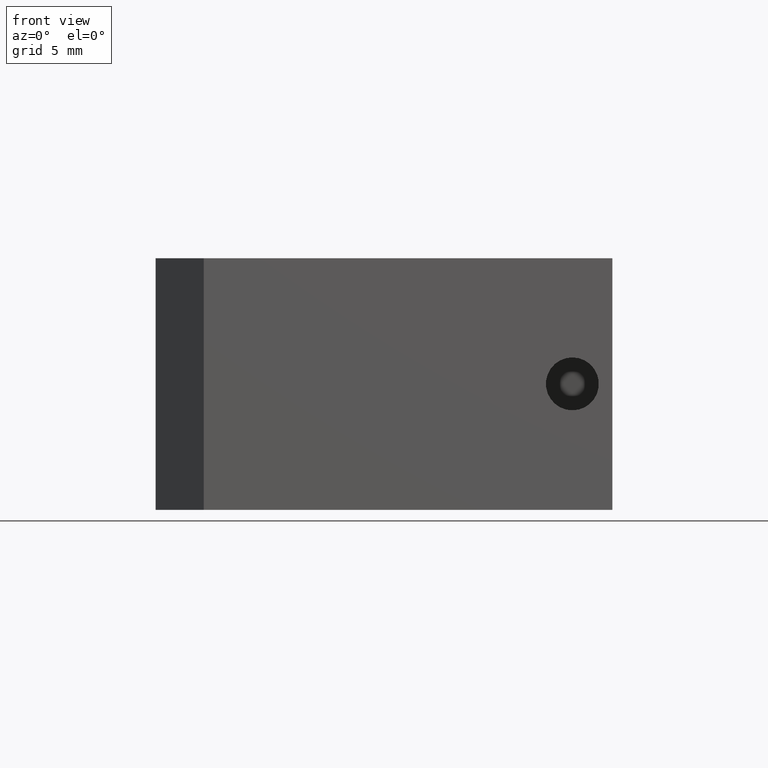
[diagram: clean part render]
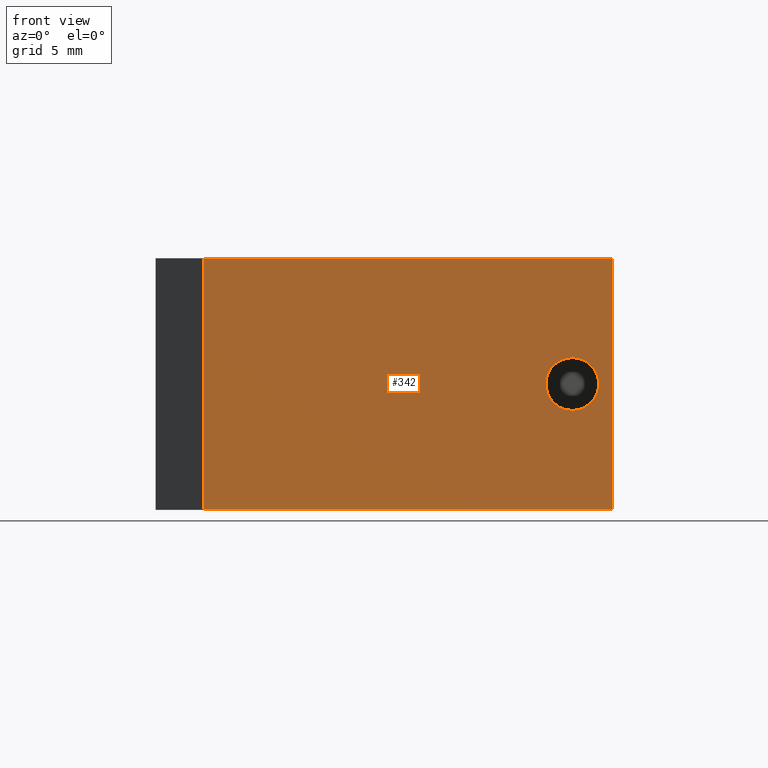
[diagram: same view with one face highlighted and labeled with its STEP entity id]
A machine part, front view. The second image highlights one B-rep face of the part: STEP entity #342.
In plain terms, the highlighted planar face has unit normal (0, 1, 0).
Its self-contained STEP definition (entity closure, byte-faithful):
#17 = DIRECTION ( 'NONE',  ( 1.000000000000000000, 0.0000000000000000000, 0.0000000000000000000 ) ) ;
#18 = CARTESIAN_POINT ( 'NONE',  ( 14.25000000000000000, -16.00000000000000000, 0.0000000000000000000 ) ) ;
#30 = VECTOR ( 'NONE', #17, 1000.000000000000000 ) ;
#39 = VECTOR ( 'NONE', #98, 1000.000000000000000 ) ;
#45 = CARTESIAN_POINT ( 'NONE',  ( 11.75000000000000000, -16.00000000000000000, 7.849999999999999600 ) ) ;
#50 = CIRCLE ( 'NONE', #175, 1.649999999999995200 ) ;
#52 = CARTESIAN_POINT ( 'NONE',  ( -14.25000000000000000, -16.00000000000000000, 15.69999999999999900 ) ) ;
#72 = ORIENTED_EDGE ( 'NONE', *, *, #444, .F. ) ;
#79 = VERTEX_POINT ( 'NONE', #18 ) ;
#82 = FACE_OUTER_BOUND ( 'NONE', #357, .T. ) ;
#88 = CARTESIAN_POINT ( 'NONE',  ( -14.25000000000000000, -16.00000000000000000, 0.0000000000000000000 ) ) ;
#98 = DIRECTION ( 'NONE',  ( -0.0000000000000000000, -0.0000000000000000000, -1.000000000000000000 ) ) ;
#101 = DIRECTION ( 'NONE',  ( -0.0000000000000000000, -1.000000000000000000, -0.0000000000000000000 ) ) ;
#102 = DIRECTION ( 'NONE',  ( 0.0000000000000000000, -0.0000000000000000000, 1.000000000000000000 ) ) ;
#105 = CARTESIAN_POINT ( 'NONE',  ( -14.25000000000000000, -16.00000000000000000, 15.69999999999999900 ) ) ;
#121 = AXIS2_PLACEMENT_3D ( 'NONE', #52, #411, #102 ) ;
#127 = VECTOR ( 'NONE', #514, 1000.000000000000000 ) ;
#142 = LINE ( 'NONE', #88, #30 ) ;
#146 = VERTEX_POINT ( 'NONE', #340 ) ;
#158 = LINE ( 'NONE', #105, #380 ) ;
#175 = AXIS2_PLACEMENT_3D ( 'NONE', #317, #101, #219 ) ;
#180 = VERTEX_POINT ( 'NONE', #568 ) ;
#192 = CARTESIAN_POINT ( 'NONE',  ( -11.25000000000000500, -16.00000000000000000, 15.69999999999999900 ) ) ;
#219 = DIRECTION ( 'NONE',  ( 0.0000000000000000000, 0.0000000000000000000, -1.000000000000000000 ) ) ;
#231 = EDGE_CURVE ( 'NONE', #180, #538, #244, .T. ) ;
#244 = LINE ( 'NONE', #192, #127 ) ;
#247 = ORIENTED_EDGE ( 'NONE', *, *, #503, .T. ) ;
#271 = PLANE ( 'NONE',  #121 ) ;
#272 = DIRECTION ( 'NONE',  ( 1.000000000000000000, 0.0000000000000000000, 0.0000000000000000000 ) ) ;
#280 = CARTESIAN_POINT ( 'NONE',  ( 11.75000000000000000, -16.00000000000000000, 6.200000000000003700 ) ) ;
#317 = CARTESIAN_POINT ( 'NONE',  ( 11.75000000000000000, -16.00000000000000000, 7.849999999999999600 ) ) ;
#320 = ORIENTED_EDGE ( 'NONE', *, *, #231, .T. ) ;
#321 = CARTESIAN_POINT ( 'NONE',  ( 14.25000000000000000, -16.00000000000000000, 15.69999999999999900 ) ) ;
#340 = CARTESIAN_POINT ( 'NONE',  ( 11.75000000000000000, -16.00000000000000000, 9.499999999999994700 ) ) ;
#342 = ADVANCED_FACE ( 'NONE', ( #427, #82 ), #271, .F. ) ;
#357 = EDGE_LOOP ( 'NONE', ( #468, #320, #247, #582 ) ) ;
#358 = DIRECTION ( 'NONE',  ( -0.0000000000000000000, -1.000000000000000000, -0.0000000000000000000 ) ) ;
#380 = VECTOR ( 'NONE', #272, 1000.000000000000000 ) ;
#397 = DIRECTION ( 'NONE',  ( 0.0000000000000000000, 0.0000000000000000000, -1.000000000000000000 ) ) ;
#403 = CARTESIAN_POINT ( 'NONE',  ( 14.25000000000000000, -16.00000000000000000, 15.69999999999999900 ) ) ;
#409 = EDGE_CURVE ( 'NONE', #510, #79, #521, .T. ) ;
#411 = DIRECTION ( 'NONE',  ( 0.0000000000000000000, 1.000000000000000000, 0.0000000000000000000 ) ) ;
#420 = EDGE_CURVE ( 'NONE', #180, #510, #158, .T. ) ;
#427 = FACE_BOUND ( 'NONE', #547, .T. ) ;
#444 = EDGE_CURVE ( 'NONE', #581, #146, #535, .T. ) ;
#468 = ORIENTED_EDGE ( 'NONE', *, *, #420, .F. ) ;
#478 = EDGE_CURVE ( 'NONE', #146, #581, #50, .T. ) ;
#503 = EDGE_CURVE ( 'NONE', #538, #79, #142, .T. ) ;
#510 = VERTEX_POINT ( 'NONE', #321 ) ;
#511 = CARTESIAN_POINT ( 'NONE',  ( -11.25000000000000700, -16.00000000000000000, 0.0000000000000000000 ) ) ;
#514 = DIRECTION ( 'NONE',  ( 0.0000000000000000000, 0.0000000000000000000, -1.000000000000000000 ) ) ;
#521 = LINE ( 'NONE', #403, #39 ) ;
#523 = ORIENTED_EDGE ( 'NONE', *, *, #478, .F. ) ;
#535 = CIRCLE ( 'NONE', #558, 1.649999999999995200 ) ;
#538 = VERTEX_POINT ( 'NONE', #511 ) ;
#547 = EDGE_LOOP ( 'NONE', ( #72, #523 ) ) ;
#558 = AXIS2_PLACEMENT_3D ( 'NONE', #45, #358, #397 ) ;
#568 = CARTESIAN_POINT ( 'NONE',  ( -11.25000000000000700, -16.00000000000000000, 15.69999999999999900 ) ) ;
#581 = VERTEX_POINT ( 'NONE', #280 ) ;
#582 = ORIENTED_EDGE ( 'NONE', *, *, #409, .F. ) ;